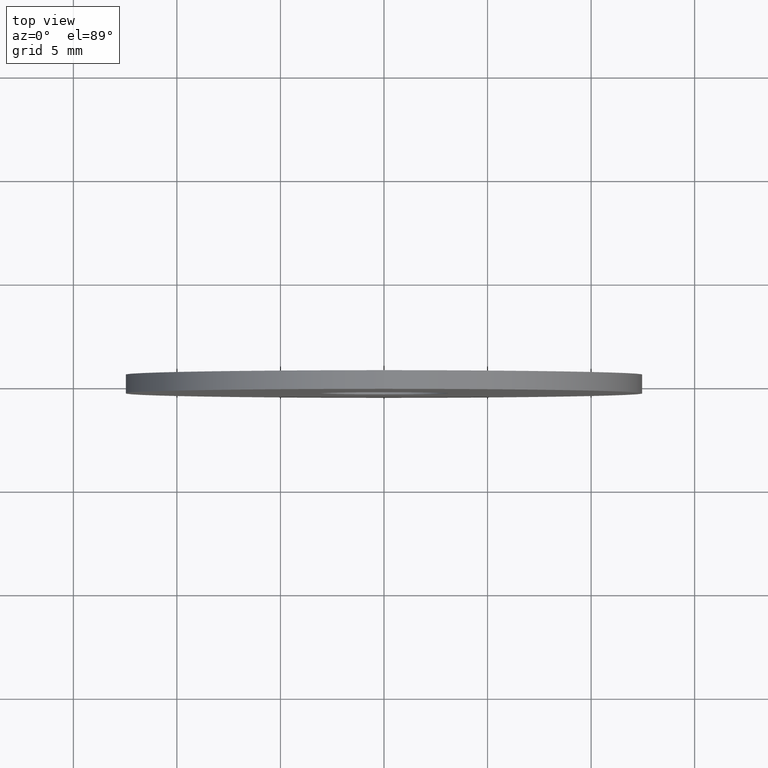
[diagram: clean part render]
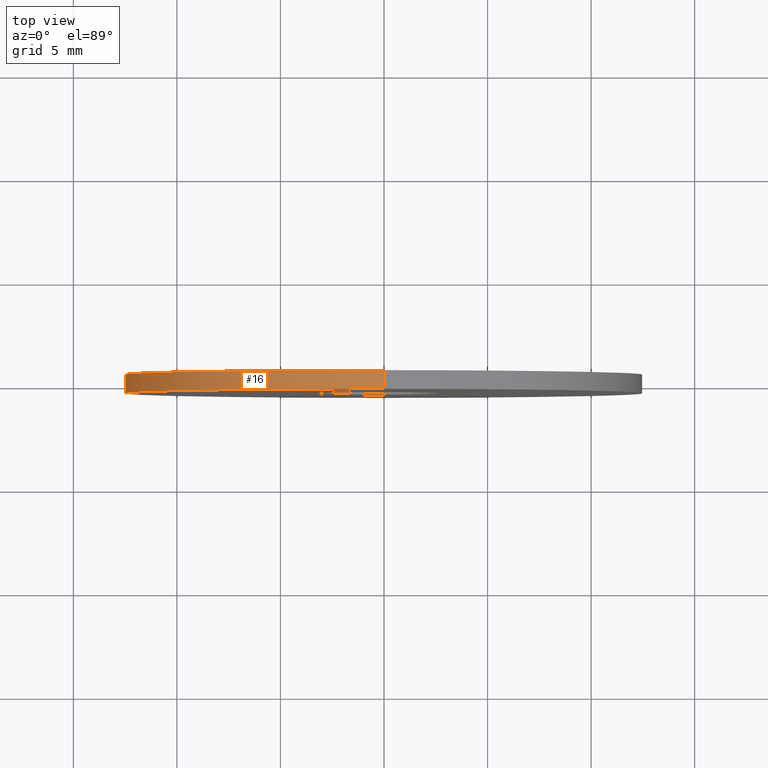
[diagram: same view with one face highlighted and labeled with its STEP entity id]
A machine part, top view. The second image highlights one B-rep face of the part: STEP entity #16.
In plain terms, the highlighted cylindrical surface (partial cylindrical patch) has radius 12.5 mm, axis along (-0, -1, -0).
Its self-contained STEP definition (entity closure, byte-faithful):
#3 = EDGE_CURVE ( 'NONE', #179, #184, #14, .T. ) ;
#6 = CYLINDRICAL_SURFACE ( 'NONE', #49, 12.50000000000000000 ) ;
#7 = VERTEX_POINT ( 'NONE', #122 ) ;
#9 = ORIENTED_EDGE ( 'NONE', *, *, #90, .F. ) ;
#14 = CIRCLE ( 'NONE', #233, 12.50000000000000000 ) ;
#16 = ADVANCED_FACE ( 'NONE', ( #183 ), #6, .T. ) ;
#17 = DIRECTION ( 'NONE',  ( -0.000000000000000000, -1.000000000000000000, -0.000000000000000000 ) ) ;
#29 = DIRECTION ( 'NONE',  ( -0.000000000000000000, -1.000000000000000000, -0.000000000000000000 ) ) ;
#31 = CIRCLE ( 'NONE', #162, 12.50000000000000000 ) ;
#38 = DIRECTION ( 'NONE',  ( 0.000000000000000000, 0.000000000000000000, 1.000000000000000000 ) ) ;
#49 = AXIS2_PLACEMENT_3D ( 'NONE', #82, #202, #163 ) ;
#59 = VECTOR ( 'NONE', #17, 1000.000000000000000 ) ;
#62 = CARTESIAN_POINT ( 'NONE',  ( 1.530808498934191521E-15, 0.4500000000000000111, 12.50000000000000000 ) ) ;
#82 = CARTESIAN_POINT ( 'NONE',  ( 0.000000000000000000, 0.4500000000000000111, 0.000000000000000000 ) ) ;
#84 = EDGE_CURVE ( 'NONE', #7, #179, #190, .T. ) ;
#89 = DIRECTION ( 'NONE',  ( 0.000000000000000000, 1.000000000000000000, 0.000000000000000000 ) ) ;
#90 = EDGE_CURVE ( 'NONE', #238, #184, #209, .T. ) ;
#108 = EDGE_LOOP ( 'NONE', ( #9, #123, #237, #161 ) ) ;
#122 = CARTESIAN_POINT ( 'NONE',  ( 0.000000000000000000, 0.4500000000000000111, -12.50000000000000000 ) ) ;
#123 = ORIENTED_EDGE ( 'NONE', *, *, #182, .F. ) ;
#130 = CARTESIAN_POINT ( 'NONE',  ( 1.530808498934191521E-15, 0.4500000000000000111, 12.50000000000000000 ) ) ;
#133 = DIRECTION ( 'NONE',  ( 0.000000000000000000, 0.000000000000000000, 1.000000000000000000 ) ) ;
#141 = CARTESIAN_POINT ( 'NONE',  ( 0.000000000000000000, -0.4500000000000000111, 0.000000000000000000 ) ) ;
#161 = ORIENTED_EDGE ( 'NONE', *, *, #3, .T. ) ;
#162 = AXIS2_PLACEMENT_3D ( 'NONE', #204, #89, #133 ) ;
#163 = DIRECTION ( 'NONE',  ( 0.000000000000000000, 0.000000000000000000, -1.000000000000000000 ) ) ;
#170 = CARTESIAN_POINT ( 'NONE',  ( 1.530808498934191521E-15, -0.4500000000000000111, 12.50000000000000000 ) ) ;
#179 = VERTEX_POINT ( 'NONE', #188 ) ;
#182 = EDGE_CURVE ( 'NONE', #7, #238, #31, .T. ) ;
#183 = FACE_OUTER_BOUND ( 'NONE', #108, .T. ) ;
#184 = VERTEX_POINT ( 'NONE', #170 ) ;
#188 = CARTESIAN_POINT ( 'NONE',  ( 0.000000000000000000, -0.4500000000000000111, -12.50000000000000000 ) ) ;
#190 = LINE ( 'NONE', #243, #59 ) ;
#202 = DIRECTION ( 'NONE',  ( -0.000000000000000000, -1.000000000000000000, -0.000000000000000000 ) ) ;
#204 = CARTESIAN_POINT ( 'NONE',  ( 0.000000000000000000, 0.4500000000000000111, 0.000000000000000000 ) ) ;
#205 = VECTOR ( 'NONE', #29, 1000.000000000000000 ) ;
#209 = LINE ( 'NONE', #130, #205 ) ;
#218 = DIRECTION ( 'NONE',  ( 0.000000000000000000, 1.000000000000000000, 0.000000000000000000 ) ) ;
#233 = AXIS2_PLACEMENT_3D ( 'NONE', #141, #218, #38 ) ;
#237 = ORIENTED_EDGE ( 'NONE', *, *, #84, .T. ) ;
#238 = VERTEX_POINT ( 'NONE', #62 ) ;
#243 = CARTESIAN_POINT ( 'NONE',  ( 0.000000000000000000, 0.4500000000000000111, -12.50000000000000000 ) ) ;